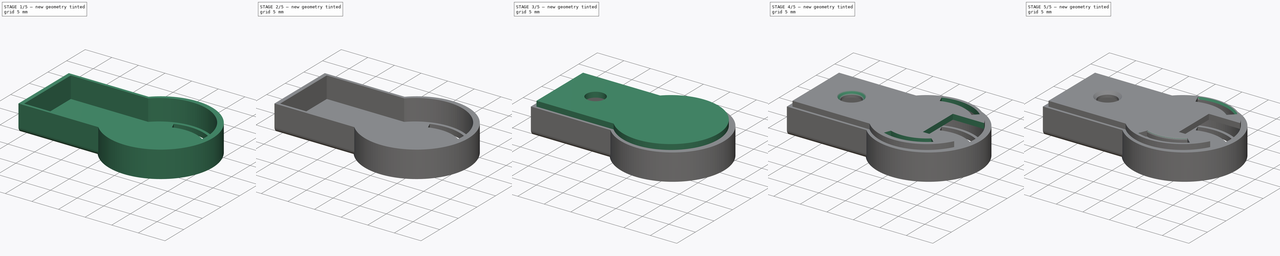
[diagram: build sequence overview — one tinted view per stage of 5, left to right]
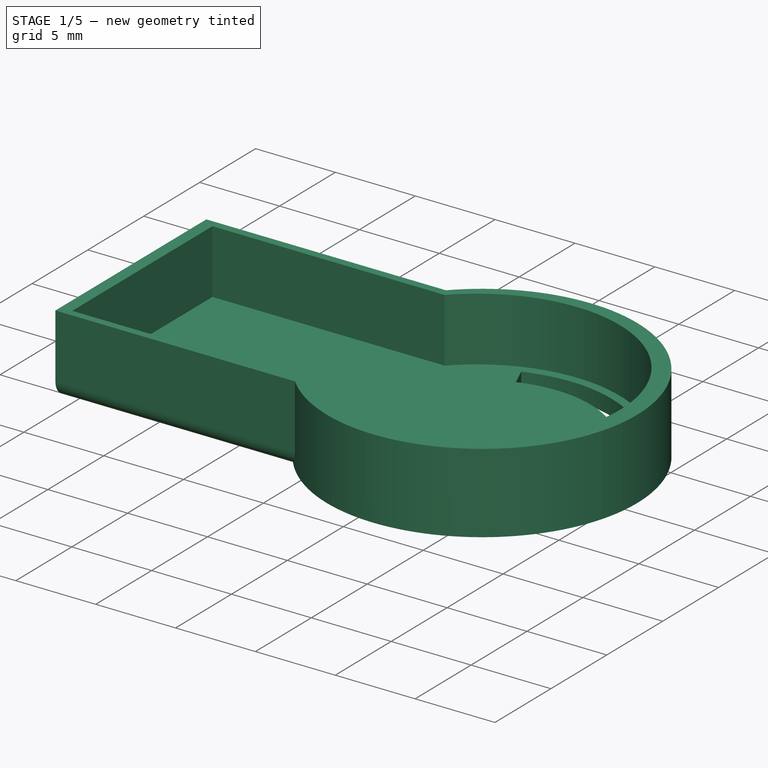
[diagram: stage 1 of 5 — iso view after this stage's code; geometry added in this stage tinted green]
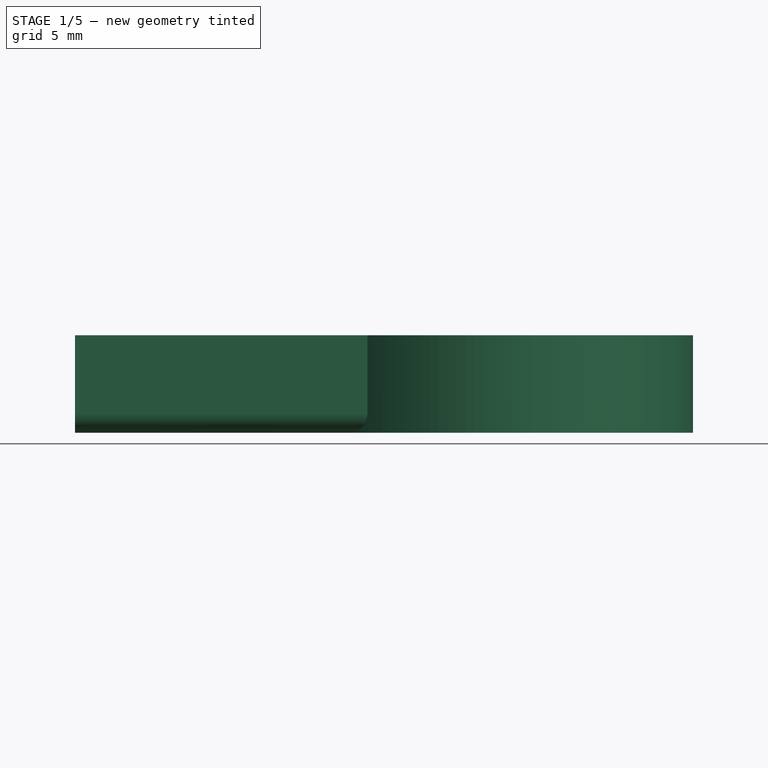
[diagram: stage 1 of 5 — front view after this stage's code; geometry added in this stage tinted green]
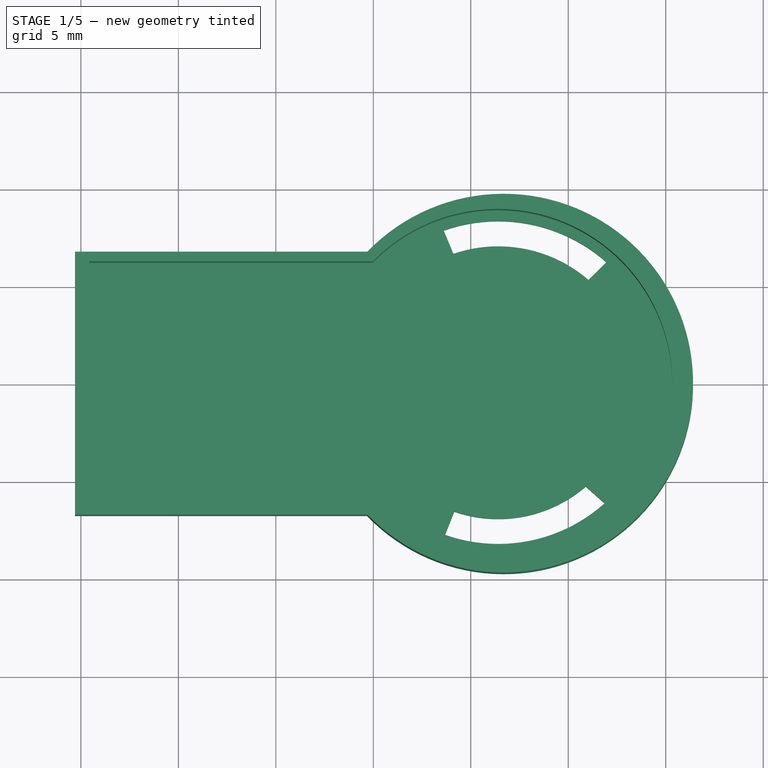
[diagram: stage 1 of 5 — top view after this stage's code; geometry added in this stage tinted green]
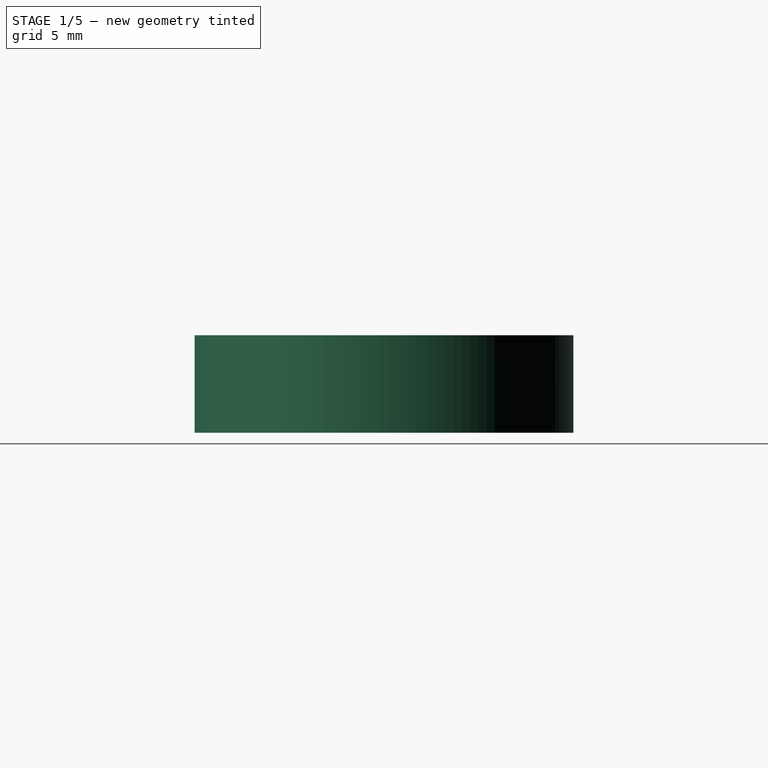
[diagram: stage 1 of 5 — right view after this stage's code; geometry added in this stage tinted green]
FCSTD DOCUMENT  (FreeCAD 1.1R44795 (Git))
Label: enclosure
License: All rights reserved
LicenseURL: https://en.wikipedia.org/wiki/All_rights_reserved
objects: Part::Feature×18, Sketcher::SketchObject×9, PartDesign::Pocket×7, PartDesign::Fillet×6, App::Point×5, App::Part×3, PartDesign::Chamfer×3, PartDesign::Pad×2, PartDesign::Body×2
note: 92 computed .brp shape members not serialized (recipe doc carries the construction recipe); baked Part::Feature solids carry a one-line shape summary decoded from their .brp

FEATURE [Sketcher::SketchObject] Sketch
  ArcFitTolerance = 1e-06
  AttachmentSupport = -> [XY_Plane001]
  ExternalTypes = [0]
  FullyConstrained = false
  MakeInternals = false
  MapMode = 5
  _ExternalGeoVersion = 0
  sketch-geometry (4):
    g0: LineSegment StartX=-10.3022 StartY=-6.75 StartZ=0 EndX=-10.3022 EndY=6.75 EndZ=0
    g1: LineSegment StartX=-10.3022 StartY=6.75 StartZ=0 EndX=4.69785 EndY=6.75 EndZ=0
    g2: LineSegment StartX=-10.3022 StartY=-6.75 StartZ=0 EndX=4.69785 EndY=-6.75 EndZ=0
    g3: ArcOfCircle CenterX=11.6861 CenterY=0 CenterZ=0 NormalX=0 NormalY=0 NormalZ=1 AngleXU=0 Radius=9.71586 StartAngle=3.90965 EndAngle=8.65672
  constraints (11):
    c: Distance(g0) = 13.5
    c: Vertical(g0)
    c: Distance(g1) = 15
    c: Horizontal(g1)
    c: Coincident(g1,g0)
    c: Distance(g2) = 15
    c: Horizontal(g2)
    c: Coincident(g2,g0)
    c: PointOnObject(g3,g-1)
    c: Coincident(g3,g1)
    c: Coincident(g3,g2)
FEATURE [PartDesign::Pad] Pad
  Direction = (0,0,1)
  Length = 5
  Length2 = 10
  Profile = -> Sketch
  ReferenceAxis = -> Sketch [N_Axis]
  Refine = true
  SideType = 0
  Suppressed = false
  Type = 0
  Type2 = 0
FEATURE [Sketcher::SketchObject] Sketch001
  ArcFitTolerance = 1e-06
  AttachmentSupport = -> [Pad]
  ExternalTypes = [0]
  FullyConstrained = false
  MakeInternals = false
  MapMode = 5
  Placement = pos=(0,0,5) rot=(0,0,1;0rad)
  _ExternalGeoVersion = 0
  sketch-geometry (4):
    g0: LineSegment StartX=-9.56843 StartY=-6.28592 StartZ=0 EndX=4.97253 EndY=-6.28592 EndZ=0
    g1: LineSegment StartX=-9.56843 StartY=-6.28592 StartZ=0 EndX=-9.56843 EndY=6.24497 EndZ=0
    g2: LineSegment StartX=-9.56843 StartY=6.24497 StartZ=0 EndX=4.97086 EndY=6.24497 EndZ=0
    g3: ArcOfCircle CenterX=11.3752 CenterY=-0.019623 CenterZ=0 NormalX=0 NormalY=0 NormalZ=1 AngleXU=0 Radius=8.95884 StartAngle=3.91623 EndAngle=8.65041
  constraints (7):
    c: Vertical(g1)
    c: Horizontal(g2)
    c: Coincident(g2,g1)
    c: Horizontal(g0)
    c: Coincident(g0,g1)
    c: Coincident(g3,g2)
    c: Coincident(g3,g0)
FEATURE [PartDesign::Pocket] Pocket
  BaseFeature = -> Pad
  Direction = (0,0,-1)
  Length = 4
  Length2 = 5
  Profile = -> Sketch001
  ReferenceAxis = -> Sketch001 [N_Axis]
  Refine = true
  SideType = 0
  Suppressed = false
  Type = 0
  Type2 = 0
FEATURE [Sketcher::SketchObject] Sketch009
  ArcFitTolerance = 1e-06
  AttachmentSupport = -> [Chamfer]
  ExternalTypes = [0]
  FullyConstrained = false
  MakeInternals = false
  MapMode = 5
  Placement = pos=(0,0,6) rot=(0,0,1;0rad)
  _ExternalGeoVersion = 0
  sketch-geometry (4):
    g0: LineSegment StartX=13.4593 StartY=4.01306 StartZ=0 EndX=13.4593 EndY=-4.07201 EndZ=0
    g1: LineSegment StartX=13.4593 StartY=-4.07201 StartZ=0 EndX=21.6715 EndY=-4.07201 EndZ=0
    g2: LineSegment StartX=21.6715 StartY=-4.07201 StartZ=0 EndX=21.6715 EndY=4.01306 EndZ=0
    g3: LineSegment StartX=21.6715 StartY=4.01306 StartZ=0 EndX=13.4593 EndY=4.01306 EndZ=0
  constraints (8):
    c: Coincident(g0,g1)
    c: Coincident(g1,g2)
    c: Coincident(g2,g3)
    c: Coincident(g3,g0)
    c: Vertical(g0)
    c: Vertical(g2)
    c: Horizontal(g1)
    c: Horizontal(g3)
FEATURE [Sketcher::SketchObject] Sketch010
  ArcFitTolerance = 1e-06
  AttachmentSupport = -> [Pocket]
  ExternalTypes = [0]
  FullyConstrained = false
  MakeInternals = false
  MapMode = 5
  Placement = pos=(0,0,1) rot=(0,0,1;0rad)
  _ExternalGeoVersion = 0
  sketch-geometry (8):
    g0: ArcOfCircle CenterX=11.4061 CenterY=0 CenterZ=0 NormalX=0 NormalY=0 NormalZ=1 AngleXU=0 Radius=8.37903 StartAngle=0.847001 EndAngle=1.91084
    g1: ArcOfCircle CenterX=11.4061 CenterY=0 CenterZ=0 NormalX=0 NormalY=0 NormalZ=1 AngleXU=0 Radius=7.08986 StartAngle=0.859148 EndAngle=1.90075
    g2: LineSegment StartX=8.61148 StartY=7.89925 StartZ=0 EndX=9.10904 EndY=6.70743 EndZ=0
    g3: LineSegment StartX=16.955 StartY=6.27839 StartZ=0 EndX=16.0364 EndY=5.36906 EndZ=0
    g4: ArcOfCircle CenterX=11.4061 CenterY=0 CenterZ=0 NormalX=0 NormalY=0 NormalZ=1 AngleXU=0 Radius=8.17828 StartAngle=4.37224 EndAngle=5.44269
    g5: ArcOfCircle CenterX=11.4061 CenterY=0 CenterZ=0 NormalX=0 NormalY=0 NormalZ=1 AngleXU=0 Radius=6.89878 StartAngle=4.37992 EndAngle=5.42187
    g6: LineSegment StartX=8.67765 StartY=-7.70971 StartZ=0 EndX=9.15452 EndY=-6.521 EndZ=0
    g7: LineSegment StartX=15.9002 StartY=-5.23412 StartZ=0 EndX=16.8618 EndY=-6.09263 EndZ=0
  constraints (12):
    c: PointOnObject(g0,g-1)
    c: Coincident(g1,g0)
    c: Coincident(g2,g0)
    c: Coincident(g2,g1)
    c: Coincident(g3,g0)
    c: Coincident(g3,g1)
    c: Coincident(g4,g0)
    c: Coincident(g5,g0)
    c: Coincident(g6,g4)
    c: Coincident(g6,g5)
    c: Coincident(g7,g5)
    c: Coincident(g7,g4)
FEATURE [PartDesign::Pocket] Pocket004
  BaseFeature = -> Pocket
  Direction = (0,0,-1)
  Length = 5
  Length2 = 5
  Profile = -> Sketch010
  ReferenceAxis = -> Sketch010 [N_Axis]
  Refine = true
  SideType = 0
  Suppressed = false
  Type = 0
  Type2 = 0
FEATURE [PartDesign::Fillet] Fillet
  Base = -> Pocket004 [Edge6]
  BaseFeature = -> Pocket004
  Radius = 1
  Refine = true
  SupportTransform = false
  Suppressed = false
  UseAllEdges = false
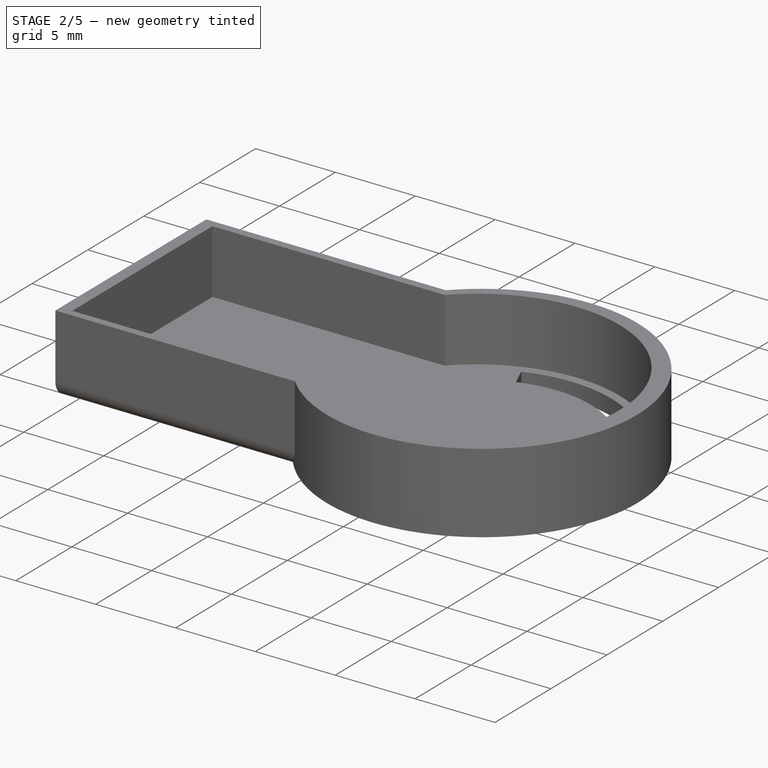
[diagram: stage 2 of 5 — iso view after this stage's code; geometry added in this stage tinted green]
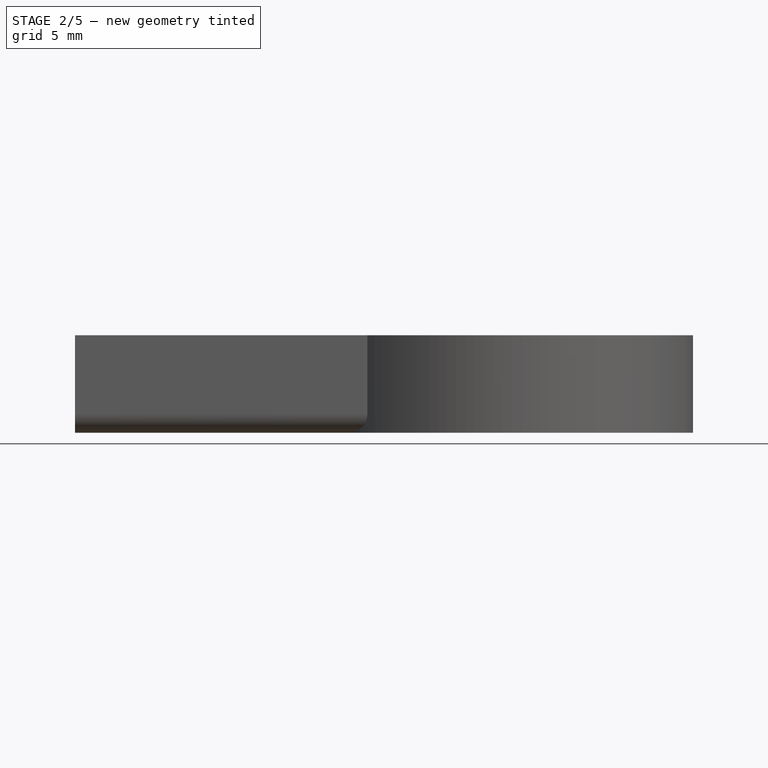
[diagram: stage 2 of 5 — front view after this stage's code; geometry added in this stage tinted green]
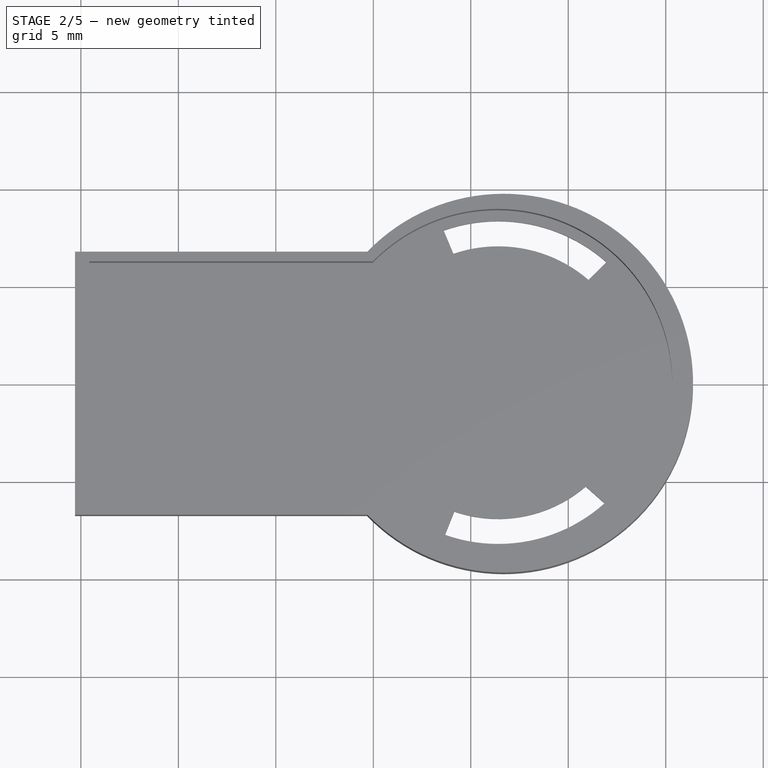
[diagram: stage 2 of 5 — top view after this stage's code; geometry added in this stage tinted green]
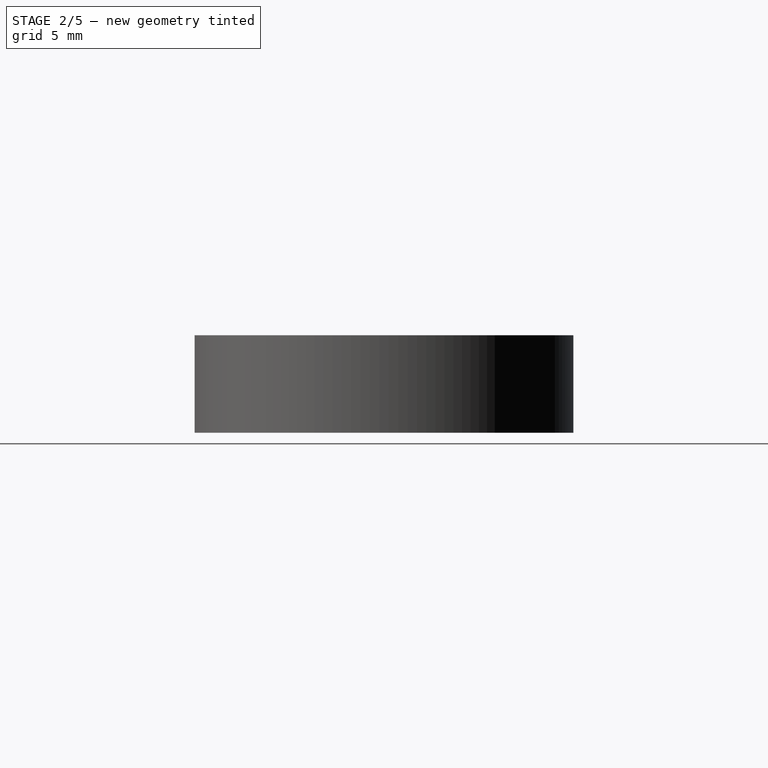
[diagram: stage 2 of 5 — right view after this stage's code; geometry added in this stage tinted green]
FEATURE [PartDesign::Fillet] Fillet001
  Base = -> Fillet [Edge17]
  BaseFeature = -> Fillet
  Radius = 1
  Refine = true
  SupportTransform = false
  Suppressed = false
  UseAllEdges = false
FEATURE [PartDesign::Fillet] Fillet002
  Base = -> Fillet001 [Edge18]
  BaseFeature = -> Fillet001
  Radius = 0.3
  Refine = true
  SupportTransform = false
  Suppressed = false
  UseAllEdges = false
FEATURE [PartDesign::Fillet] Fillet003
  Base = -> Fillet002 [Edge15]
  BaseFeature = -> Fillet002
  Radius = 0.3
  Refine = true
  SupportTransform = false
  Suppressed = false
  UseAllEdges = false
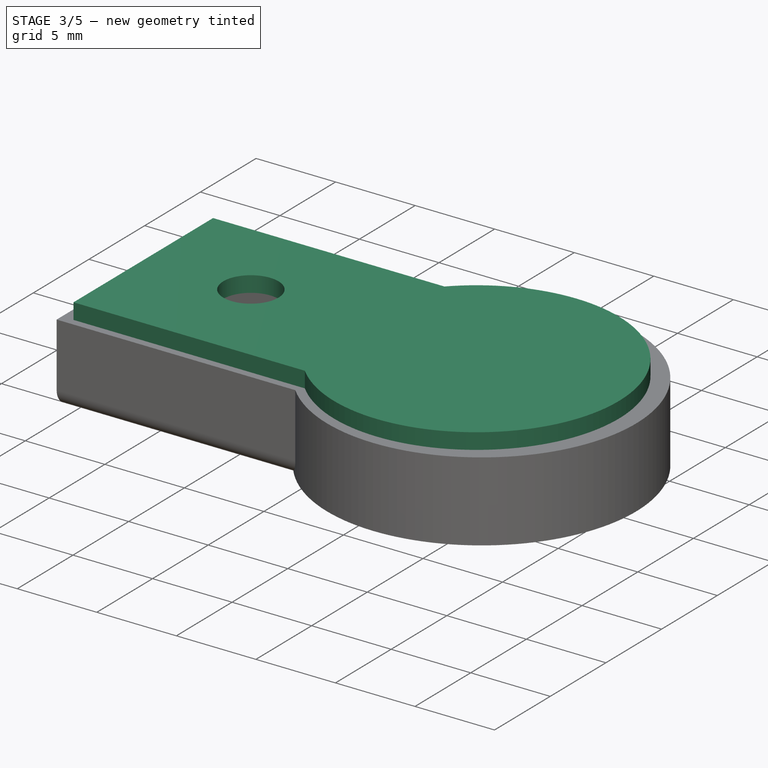
[diagram: stage 3 of 5 — iso view after this stage's code; geometry added in this stage tinted green]
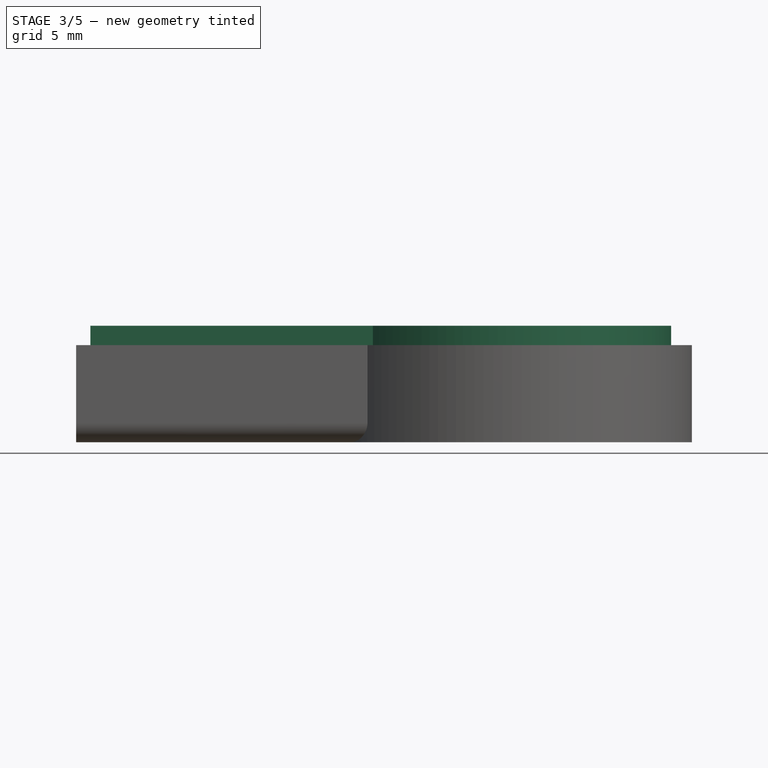
[diagram: stage 3 of 5 — front view after this stage's code; geometry added in this stage tinted green]
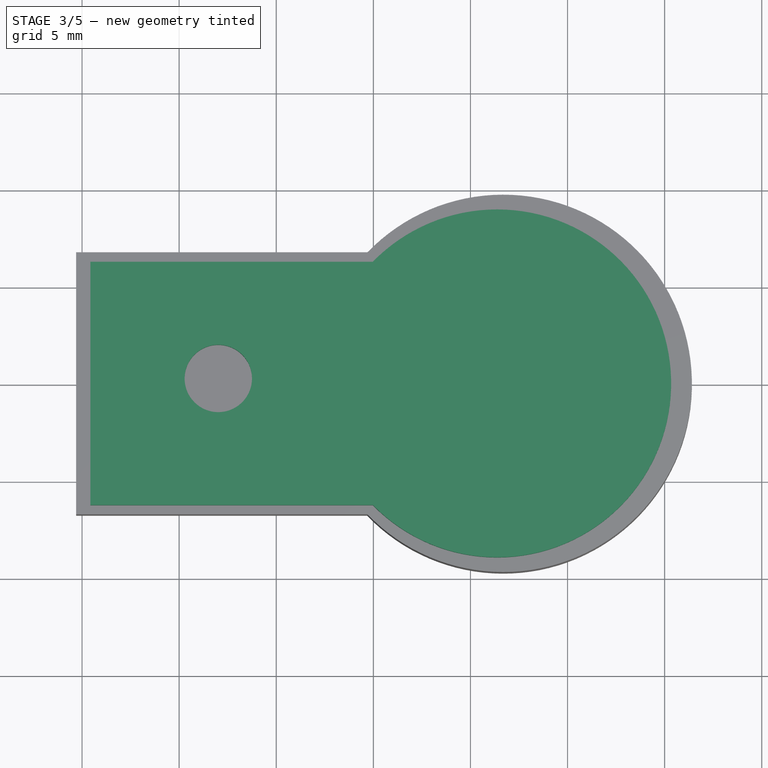
[diagram: stage 3 of 5 — top view after this stage's code; geometry added in this stage tinted green]
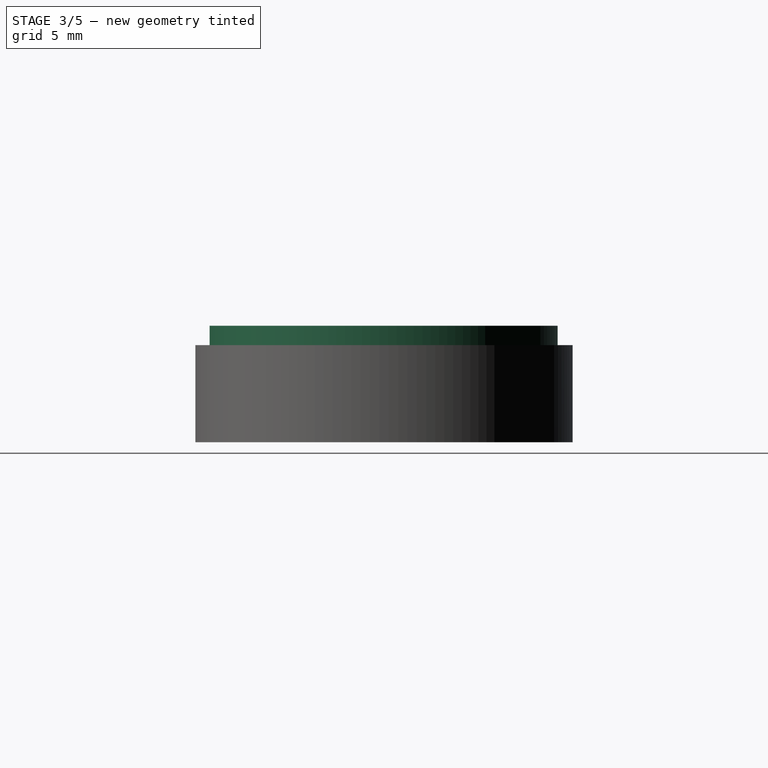
[diagram: stage 3 of 5 — right view after this stage's code; geometry added in this stage tinted green]
FEATURE [Part::Feature] Part__Feature  label="D_0603_1608Metric"
  Placement = pos=(141.368,-73.66,1.595) rot=(0,0,1;0rad)
  shape: bbox 1.6 x 0.87 x 0.66 mm, 39 faces (baked)
FEATURE [Part::Feature] Part__Feature001  label="SM06B-SRSS-TB(LF)(SN)--3DModel-STEP-269445"
  Placement = pos=(164.35,-77.99,1.595) rot=(0.57735,0.57735,0.57735;2.0944rad)
  shape: bbox 4.95 x 8 x 2.95 mm, 351 faces, 9 solids (baked)
FEATURE [Part::Feature] Part__Feature002  label="D_0603_1608Metric001"
  Placement = pos=(142.04,-81.375,1.595) rot=(0,0,-1;1.5708rad)
  shape: bbox 0.87 x 1.6 x 0.66 mm, 39 faces (baked)
FEATURE [Part::Feature] Part__Feature003  label="C_0603_1608Metric"
  Placement = pos=(157.1,-74.4,1.595) rot=(0,0,1;1.5708rad)
  shape: bbox 0.8 x 1.6 x 0.8 mm, 28 faces (baked)
FEATURE [Part::Feature] Part__Feature004  label="C_0603_1608Metric001"
  Placement = pos=(155.46,-82.93,1.595) rot=(0,0,-1;1.5708rad)
  shape: bbox 0.8 x 1.6 x 0.8 mm, 28 faces (baked)
FEATURE [Part::Feature] Part__Feature005  label="QFN-20-1EP_4x4mm_P0.5mm_EP2.5x2.5mm"
  Placement = pos=(153.083,-78.88,1.595) rot=(0,0,-1;1.5708rad)
  shape: bbox 4 x 4 x 0.77 mm, 134 faces (baked)
FEATURE [Part::Feature] Part__Feature006  label="R_0603_1608Metric"
  Placement = pos=(140.37,-81.3725,1.595) rot=(0,0,1;1.5708rad)
  shape: bbox 0.8 x 1.6 x 0.45 mm, 26 faces (baked)
FEATURE [Part::Feature] Part__Feature007  label="C_0603_1608Metric002"
  Placement = pos=(151.08,-74.45,1.595) rot=(0,0,1;1.5708rad)
  shape: bbox 0.8 x 1.6 x 0.8 mm, 28 faces (baked)
FEATURE [Part::Feature] Part__Feature008  label="PTS525SM15SMTR2LFS"
  Placement = pos=(146.04,-77.76,1.595) rot=(0.57735,0.57735,0.57735;2.0944rad)
  shape: bbox 5.1 x 6.4 x 1.6 mm, 145 faces, 7 solids (baked)
FEATURE [Part::Feature] Part__Feature009  label="Crystal_SMD_3225-4Pin_3.2x2.5mm"
  Placement = pos=(154.12,-74.37,1.595) rot=(0,0,1;0rad)
  shape: bbox 3.2 x 2.501 x 0.64 mm, 28 faces (baked)
FEATURE [Part::Feature] Part__Feature010  label="R_0603_1608Metric001"
  Placement = pos=(141.45,-75.91,1.595) rot=(0,0,1;0rad)
  shape: bbox 1.6 x 0.8 x 0.45 mm, 26 faces (baked)
FEATURE [Part::Feature] Part__Feature011  label="R_0603_1608Metric002"
  Placement = pos=(141.43,-78.24,1.595) rot=(0,0,1;0rad)
  shape: bbox 1.6 x 0.8 x 0.45 mm, 26 faces (baked)
FEATURE [Part::Feature] Part__Feature012  label="C_0805_2012Metric"
  Placement = pos=(157.57,-82.36,1.595) rot=(0,0,-1;1.5708rad)
  shape: bbox 1.25 x 2 x 1.25 mm, 28 faces (baked)
FEATURE [Part::Feature] Part__Feature013  label="R_0603_1608Metric003"
  Placement = pos=(159.6,-81.45,1.595) rot=(0,0,1;1.5708rad)
  shape: bbox 0.8 x 1.6 x 0.45 mm, 26 faces (baked)
FEATURE [Part::Feature] Part__Feature014  label="QFN_copper"
  shape: bbox 40.18 x 16.17 x 1.59 mm, 1553 faces, 31 solids (baked)
FEATURE [Part::Feature] Part__Feature015  label="QFN_silkscreen"
  shape: bbox 28.24 x 11.17 x 2e-07 mm, 84 faces, 0 solids (baked)
FEATURE [Part::Feature] Part__Feature016  label="QFN_soldermask"
  shape: bbox 40.58 x 17.72 x 1.61 mm, 2 faces, 0 solids (baked)
FEATURE [Part::Feature] Part__Feature017  label="QFN_PCB"
  shape: bbox 40.58 x 17.72 x 1.51 mm, 34 faces (baked)
FEATURE [App::Part] SOIC_1  label="SOIC 1"
  Group = -> [Part__Feature,Part__Feature001,Part__Feature002,Part__Feature003,Part__Feature004,Part__Feature005,Part__Feature006,Part__Feature007,Part__Feature008,Part__Feature009,Part__Feature010,Part__Feature011,Part__Feature012,Part__Feature013,Part__Feature014,Part__Feature015,Part__Feature016,Part__Feature017]
  Origin = -> Origin004
  Placement = pos=(-149,78,2) rot=(0,0,1;0rad)
FEATURE [Sketcher::SketchObject] Sketch006
  ArcFitTolerance = 1e-06
  ExternalTypes = [0]
  FullyConstrained = false
  MakeInternals = false
  MapMode = 5
  Placement = pos=(0,0,5) rot=(0,0,1;0rad)
  _ExternalGeoVersion = 0
  sketch-geometry (4):
    g0: LineSegment StartX=-9.56843 StartY=-6.28592 StartZ=0 EndX=4.97253 EndY=-6.28592 EndZ=0
    g1: LineSegment StartX=-9.56843 StartY=-6.28592 StartZ=0 EndX=-9.56843 EndY=6.24497 EndZ=0
    g2: LineSegment StartX=-9.56843 StartY=6.24497 StartZ=0 EndX=4.97086 EndY=6.24497 EndZ=0
    g3: ArcOfCircle CenterX=11.3752 CenterY=-0.019623 CenterZ=0 NormalX=0 NormalY=0 NormalZ=1 AngleXU=0 Radius=8.95884 StartAngle=3.91623 EndAngle=8.65041
  constraints (7):
    c: Vertical(g1)
    c: Horizontal(g2)
    c: Coincident(g2,g1)
    c: Horizontal(g0)
    c: Coincident(g0,g1)
    c: Coincident(g3,g2)
    c: Coincident(g3,g0)
FEATURE [PartDesign::Pad] Pad002
  Direction = (0,0,1)
  Length = 1
  Length2 = 10
  Placement = pos=(0,0,5) rot=(0,0,1;0rad)
  Profile = -> Sketch006
  ReferenceAxis = -> Sketch006 [N_Axis]
  Refine = true
  SideType = 0
  Suppressed = false
  Type = 0
  Type2 = 0
FEATURE [Sketcher::SketchObject] Sketch007
  ArcFitTolerance = 1e-06
  AttachmentSupport = -> [Pad002]
  ExternalTypes = [0]
  FullyConstrained = false
  MakeInternals = false
  MapMode = 2
  Placement = pos=(0,0,5) rot=(0,0,1;0rad)
  _ExternalGeoVersion = 0
  sketch-geometry (1):
    g0: Circle CenterX=-2.9579 CenterY=0.204839 CenterZ=0 NormalX=0 NormalY=0 NormalZ=1 AngleXU=0 Radius=1.69288
FEATURE [Sketcher::SketchObject] Sketch008
  ArcFitTolerance = 1e-06
  AttachmentSupport = -> [Pad002]
  ExternalTypes = [0]
  FullyConstrained = false
  MakeInternals = false
  MapMode = 5
  Placement = pos=(0,0,6) rot=(0,0,1;0rad)
  _ExternalGeoVersion = 0
  sketch-geometry (1):
    g0: Circle CenterX=-2.98424 CenterY=0.234427 CenterZ=0 NormalX=0 NormalY=0 NormalZ=1 AngleXU=0 Radius=1.73446
FEATURE [PartDesign::Pocket] Pocket001
  BaseFeature = -> Pad002
  Direction = (0,0,-1)
  Length = 1
  Length2 = 5
  Placement = pos=(0,0,5) rot=(0,0,1;0rad)
  Profile = -> Sketch007
  ReferenceAxis = -> Sketch007 [N_Axis]
  Refine = true
  SideType = 0
  Suppressed = false
  Type = 0
  Type2 = 0
FEATURE [PartDesign::Pocket] Pocket002
  BaseFeature = -> Pocket001
  Direction = (0,0,-1)
  Length = 1
  Length2 = 5
  Placement = pos=(0,0,5) rot=(0,0,1;0rad)
  Profile = -> Sketch008
  ReferenceAxis = -> Sketch008 [N_Axis]
  Refine = true
  SideType = 0
  Suppressed = false
  Type = 0
  Type2 = 0
FEATURE [PartDesign::Body] Body003
  AllowCompound = false
  Group = -> [Sketch006,Pad002,Sketch007,Pocket001,Sketch008,Pocket002,Chamfer,Sketch009,Sketch011,Pocket005,Pocket006,Fillet004,Fillet005,Chamfer001,Chamfer002]
  Origin = -> Origin033
  Tip = -> Chamfer002
FEATURE [App::Part] Part005  label="top"
  Group = -> [Body003]
  Origin = -> Origin032
  Placement = pos=(0,0,-1) rot=(0,0,1;0rad)
FEATURE [App::Point] Origin034  label="Origin"
  Role = Origin
FEATURE [App::Point] Origin035  label="Origin"
  Role = Origin
FEATURE [App::Point] Origin036  label="Origin"
  Role = Origin
FEATURE [App::Point] Origin037  label="Origin"
  Role = Origin
FEATURE [App::Point] Origin038  label="Origin"
  Role = Origin
FEATURE [Sketcher::SketchObject] Sketch012
  ArcFitTolerance = 1e-06
  AttachmentSupport = -> [Fillet003]
  ExternalTypes = [0]
  FullyConstrained = false
  MakeInternals = false
  MapMode = 5
  Placement = pos=(-10.3022,0,0) rot=(0.57735,-0.57735,-0.57735;2.0944rad)
  _ExternalGeoVersion = 1
  sketch-geometry (4):
    g0: LineSegment StartX=-6.19249 StartY=3.62589 StartZ=0 EndX=-6.19249 EndY=1.88869 EndZ=0
    g1: LineSegment StartX=-6.19249 StartY=1.88869 StartZ=0 EndX=6.21608 EndY=1.88869 EndZ=0
    g2: LineSegment StartX=6.21608 StartY=1.88869 StartZ=0 EndX=6.21608 EndY=3.62589 EndZ=0
    g3: LineSegment StartX=6.21608 StartY=3.62589 StartZ=0 EndX=-6.19249 EndY=3.62589 EndZ=0
  constraints (8):
    c: Coincident(g0,g1)
    c: Coincident(g1,g2)
    c: Coincident(g2,g3)
    c: Coincident(g3,g0)
    c: Vertical(g0)
    c: Vertical(g2)
    c: Horizontal(g1)
    c: Horizontal(g3)
FEATURE [PartDesign::Pocket] Pocket007
  BaseFeature = -> Fillet003
  Direction = (1,0,0)
  Length = 2
  Length2 = 5
  Profile = -> Sketch012
  ReferenceAxis = -> Sketch012 [N_Axis]
  Refine = true
  SideType = 0
  Suppressed = false
  Type = 0
  Type2 = 0
FEATURE [PartDesign::Body] Body
  AllowCompound = false
  Group = -> [Sketch,Pad,Sketch001,Pocket,Sketch010,Pocket004,Fillet,Fillet001,Fillet002,Fillet003,Sketch012,Pocket007]
  Origin = -> Origin001
  Tip = -> Pocket007
FEATURE [App::Part] Part
  Group = -> [Body]
  Origin = -> Origin
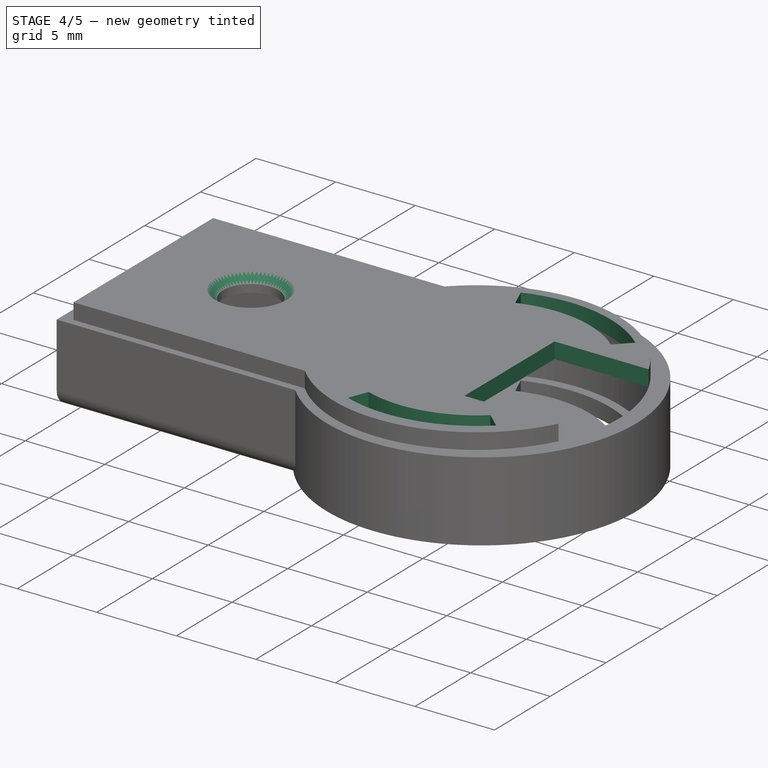
[diagram: stage 4 of 5 — iso view after this stage's code; geometry added in this stage tinted green]
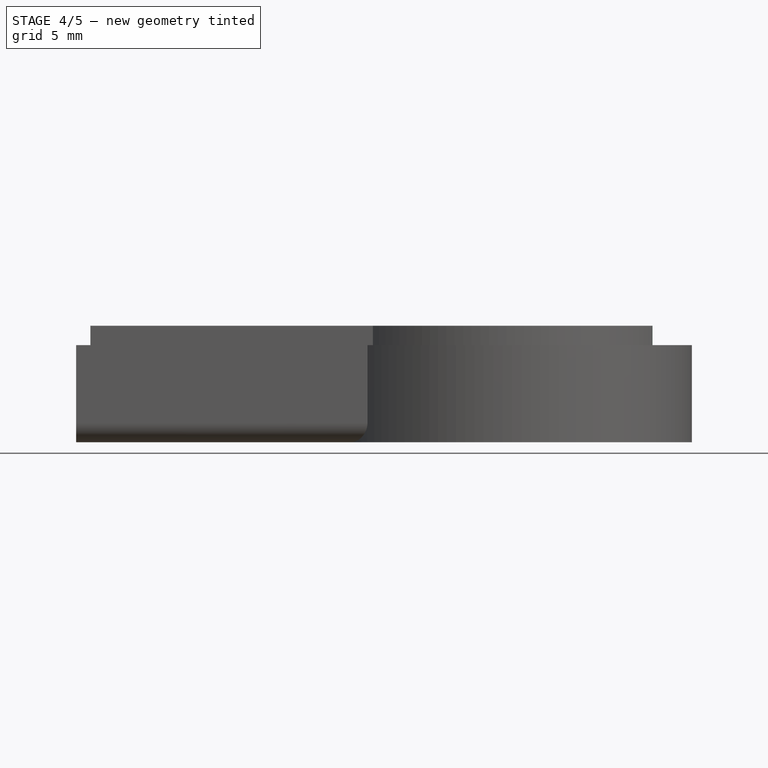
[diagram: stage 4 of 5 — front view after this stage's code; geometry added in this stage tinted green]
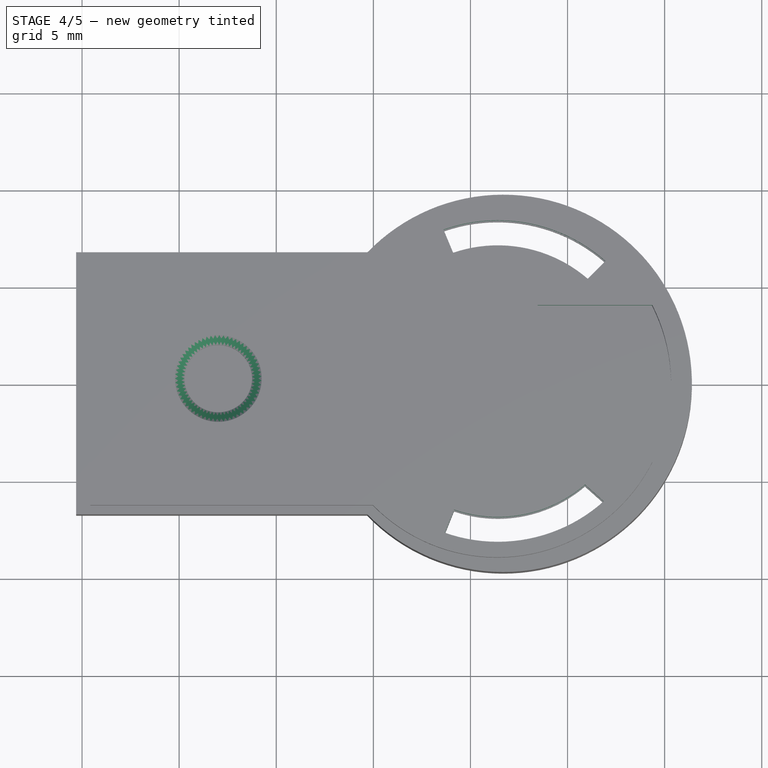
[diagram: stage 4 of 5 — top view after this stage's code; geometry added in this stage tinted green]
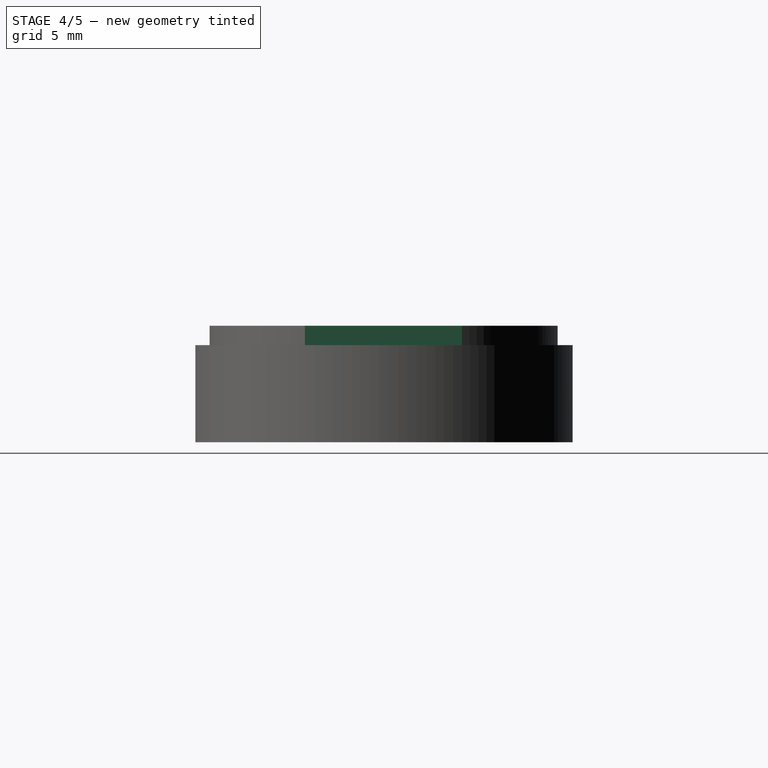
[diagram: stage 4 of 5 — right view after this stage's code; geometry added in this stage tinted green]
FEATURE [PartDesign::Chamfer] Chamfer
  Angle = 45
  Base = -> Pocket002 [Edge14]
  BaseFeature = -> Pocket002
  ChamferType = 0
  FlipDirection = false
  Placement = pos=(0,0,5) rot=(0,0,1;0rad)
  Refine = true
  Size = 0.5
  Size2 = 1
  SupportTransform = false
  Suppressed = false
  UseAllEdges = false
FEATURE [Sketcher::SketchObject] Sketch011
  ArcFitTolerance = 1e-06
  ExternalTypes = [0]
  FullyConstrained = false
  MakeInternals = false
  MapMode = 5
  Placement = pos=(0,0,6) rot=(0,0,1;0rad)
  _ExternalGeoVersion = 0
  sketch-geometry (8):
    g0: ArcOfCircle CenterX=11.4061 CenterY=0 CenterZ=0 NormalX=0 NormalY=0 NormalZ=1 AngleXU=0 Radius=8.37903 StartAngle=0.847001 EndAngle=1.91084
    g1: ArcOfCircle CenterX=11.4061 CenterY=0 CenterZ=0 NormalX=0 NormalY=0 NormalZ=1 AngleXU=0 Radius=7.08986 StartAngle=0.859148 EndAngle=1.90074
    g2: LineSegment StartX=8.61148 StartY=7.89925 StartZ=0 EndX=9.10904 EndY=6.70743 EndZ=0
    g3: LineSegment StartX=16.955 StartY=6.27839 StartZ=0 EndX=16.0364 EndY=5.36906 EndZ=0
    g4: ArcOfCircle CenterX=11.4061 CenterY=0 CenterZ=0 NormalX=0 NormalY=0 NormalZ=1 AngleXU=0 Radius=8.17828 StartAngle=4.37224 EndAngle=5.44269
    g5: ArcOfCircle CenterX=11.4061 CenterY=0 CenterZ=0 NormalX=0 NormalY=0 NormalZ=1 AngleXU=0 Radius=6.89878 StartAngle=4.37992 EndAngle=5.42187
    g6: LineSegment StartX=8.67765 StartY=-7.70971 StartZ=0 EndX=9.15452 EndY=-6.521 EndZ=0
    g7: LineSegment StartX=15.9002 StartY=-5.23412 StartZ=0 EndX=16.8618 EndY=-6.09263 EndZ=0
  constraints (12):
    c: PointOnObject(g0,g-1)
    c: Coincident(g1,g0)
    c: Coincident(g2,g0)
    c: Coincident(g2,g1)
    c: Coincident(g3,g0)
    c: Coincident(g3,g1)
    c: Coincident(g4,g0)
    c: Coincident(g5,g0)
    c: Coincident(g6,g4)
    c: Coincident(g6,g5)
    c: Coincident(g7,g5)
    c: Coincident(g7,g4)
FEATURE [PartDesign::Pocket] Pocket005
  BaseFeature = -> Chamfer
  Direction = (0,0,-1)
  Length = 5
  Length2 = 5
  Placement = pos=(0,0,5) rot=(0,0,1;0rad)
  Profile = -> Sketch011
  ReferenceAxis = -> Sketch011 [N_Axis]
  Refine = true
  SideType = 0
  Suppressed = false
  Type = 0
  Type2 = 0
FEATURE [PartDesign::Pocket] Pocket006
  BaseFeature = -> Pocket005
  Direction = (0,0,-1)
  Length = 5
  Length2 = 5
  Placement = pos=(0,0,5) rot=(0,0,1;0rad)
  Profile = -> Sketch009
  ReferenceAxis = -> Sketch009 [N_Axis]
  Refine = true
  SideType = 0
  Suppressed = false
  Type = 0
  Type2 = 0
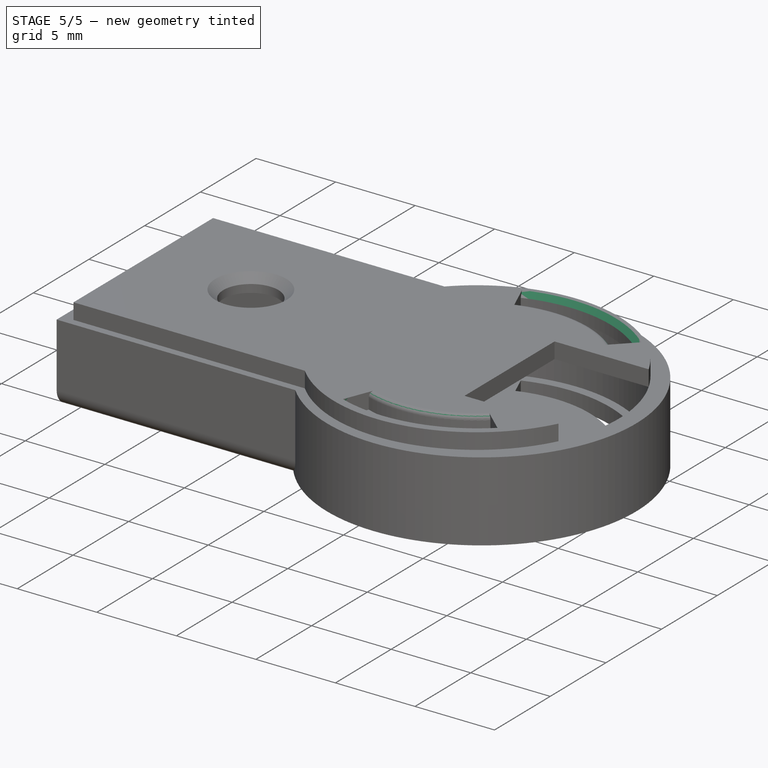
[diagram: stage 5 of 5 — iso view after this stage's code; geometry added in this stage tinted green]
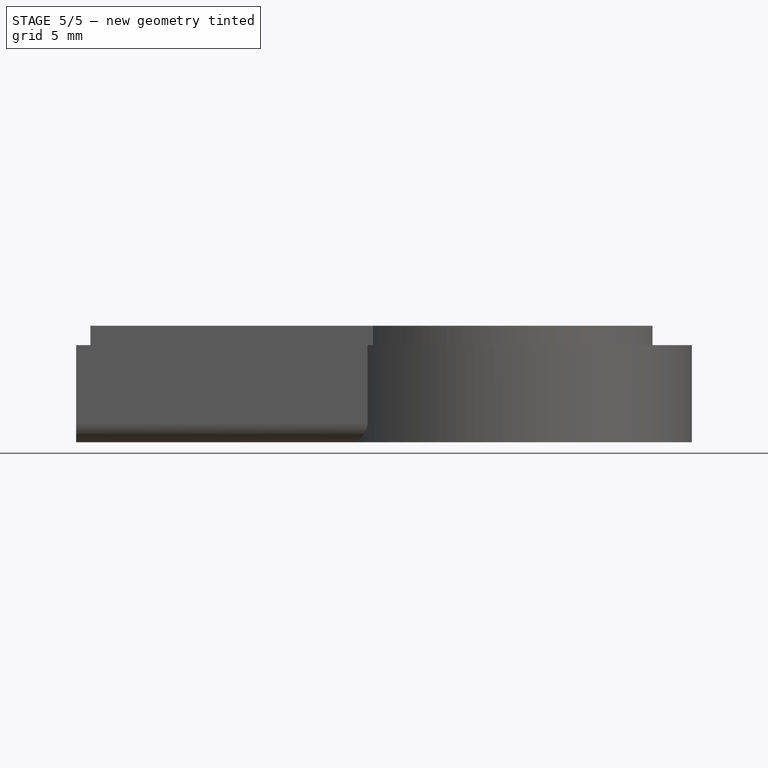
[diagram: stage 5 of 5 — front view after this stage's code; geometry added in this stage tinted green]
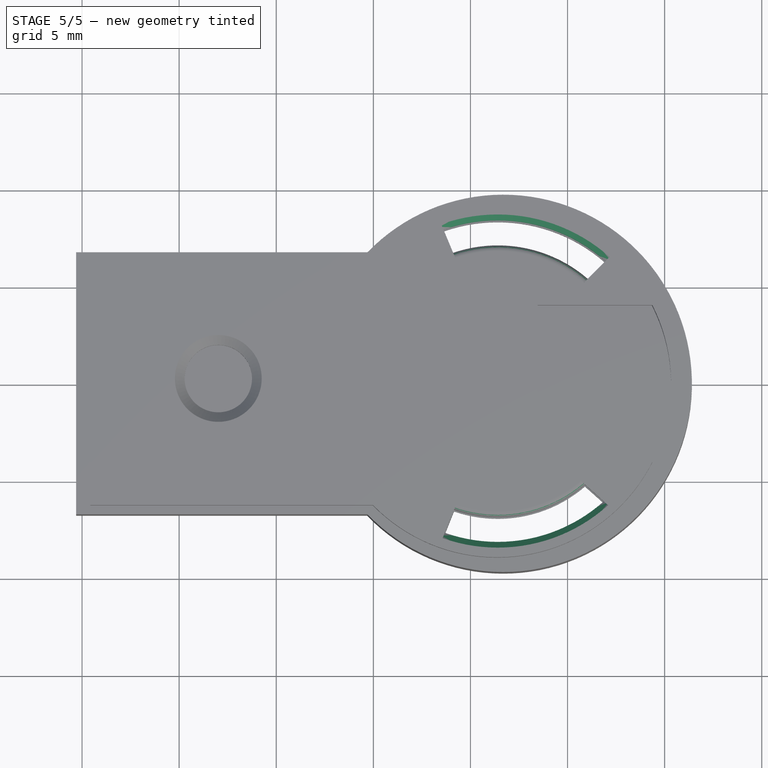
[diagram: stage 5 of 5 — top view after this stage's code; geometry added in this stage tinted green]
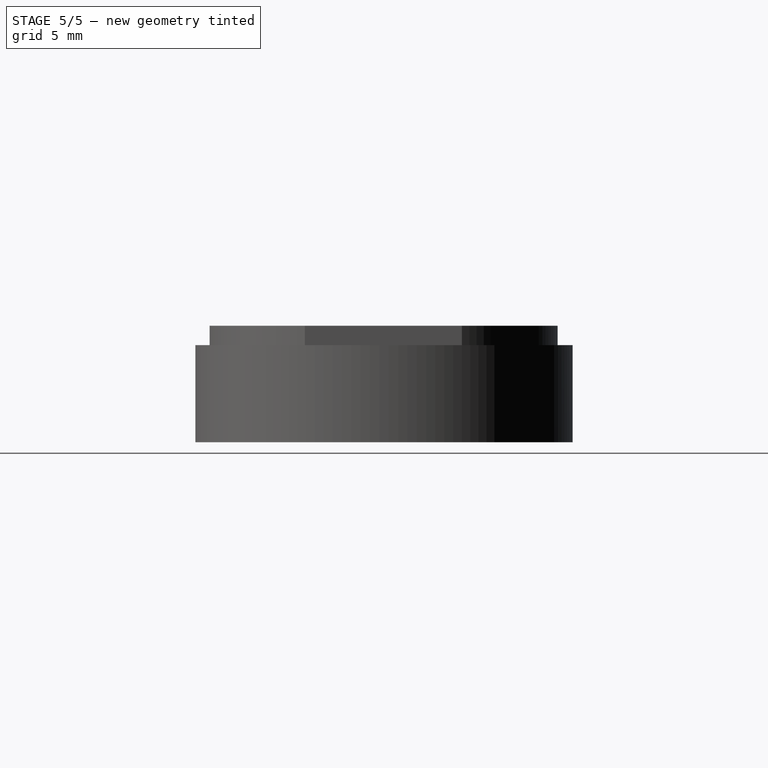
[diagram: stage 5 of 5 — right view after this stage's code; geometry added in this stage tinted green]
FEATURE [PartDesign::Fillet] Fillet004
  Base = -> Pocket006 [Edge12]
  BaseFeature = -> Pocket006
  Placement = pos=(0,0,5) rot=(0,0,1;0rad)
  Radius = 0.3
  Refine = true
  SupportTransform = false
  Suppressed = false
  UseAllEdges = false
FEATURE [PartDesign::Fillet] Fillet005
  Base = -> Fillet004 [Edge19]
  BaseFeature = -> Fillet004
  Placement = pos=(0,0,5) rot=(0,0,1;0rad)
  Radius = 0.3
  Refine = true
  SupportTransform = false
  Suppressed = false
  UseAllEdges = false
FEATURE [PartDesign::Chamfer] Chamfer001
  Angle = 45
  Base = -> Fillet005 [Edge10]
  BaseFeature = -> Fillet005
  ChamferType = 0
  FlipDirection = false
  Placement = pos=(0,0,5) rot=(0,0,1;0rad)
  Refine = true
  Size = 0.3
  Size2 = 1
  SupportTransform = false
  Suppressed = false
  UseAllEdges = false
FEATURE [PartDesign::Chamfer] Chamfer002
  Angle = 45
  Base = -> Chamfer001 [Edge12]
  BaseFeature = -> Chamfer001
  ChamferType = 0
  FlipDirection = false
  Placement = pos=(0,0,5) rot=(0,0,1;0rad)
  Refine = true
  Size = 0.3
  Size2 = 1
  SupportTransform = false
  Suppressed = false
  UseAllEdges = false
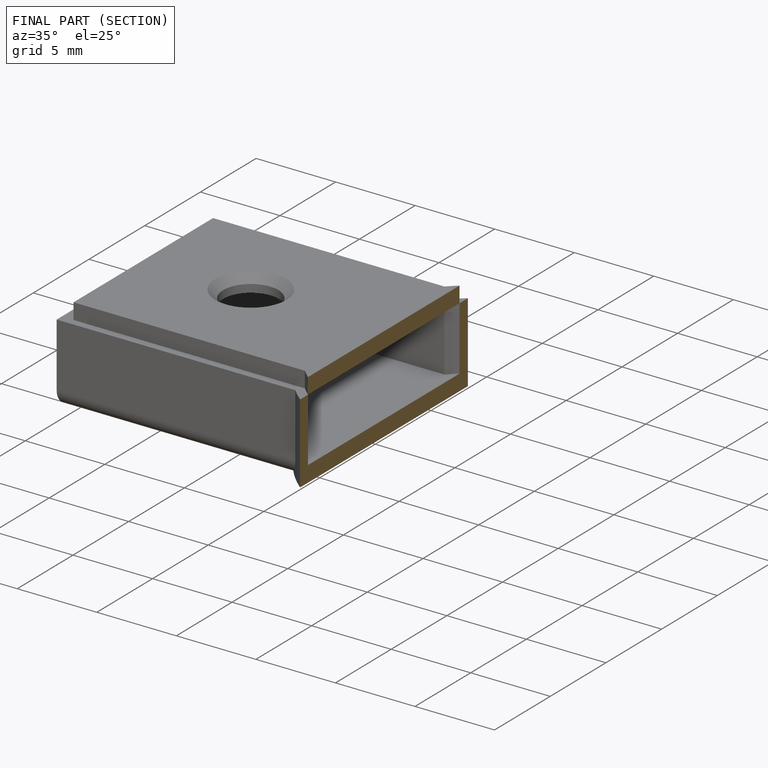
[diagram: finished part — half-section view (interior)]
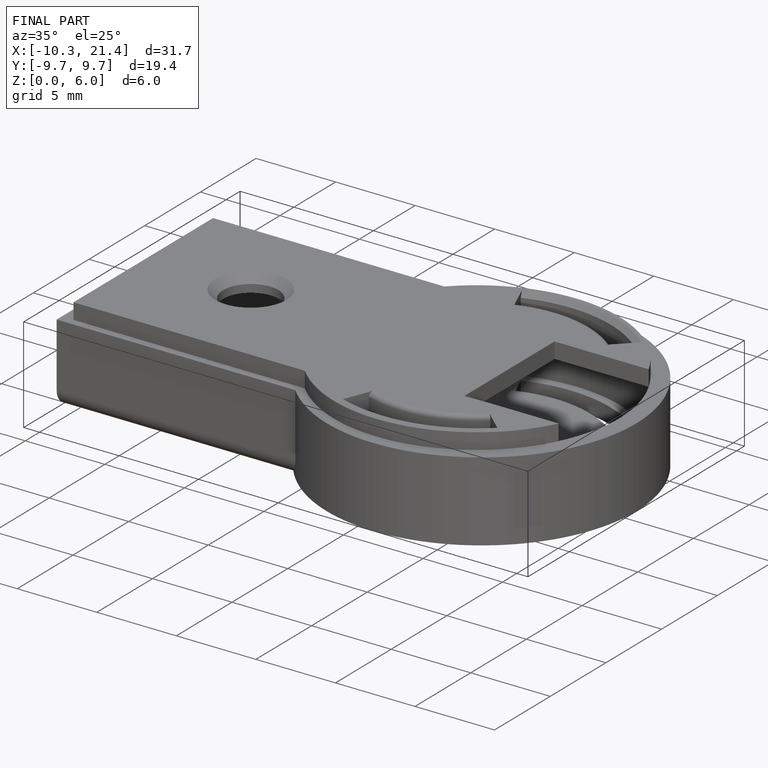
[diagram: finished part — iso view with bounding-box wireframe]
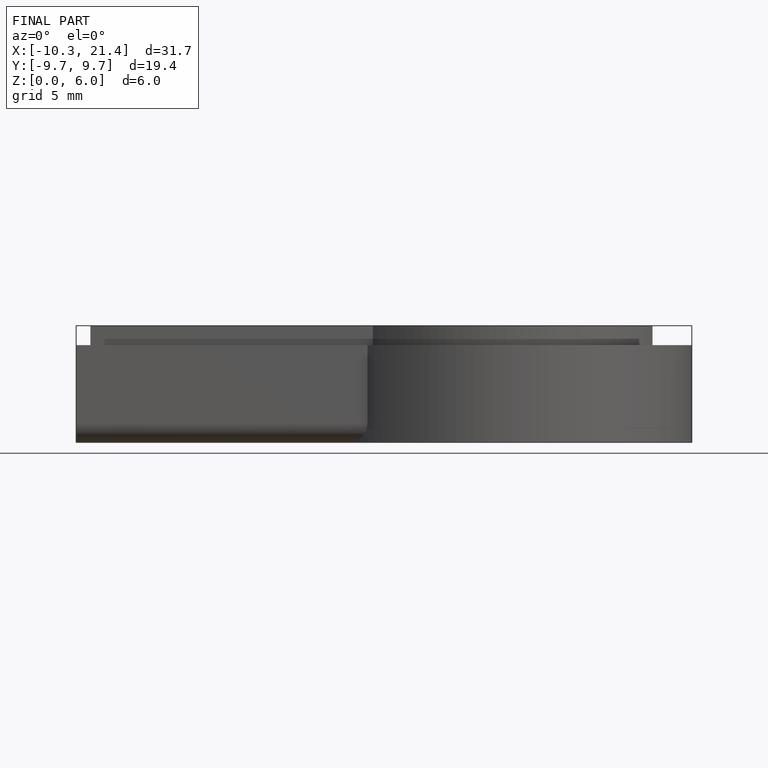
[diagram: finished part — front view with bounding-box wireframe]
